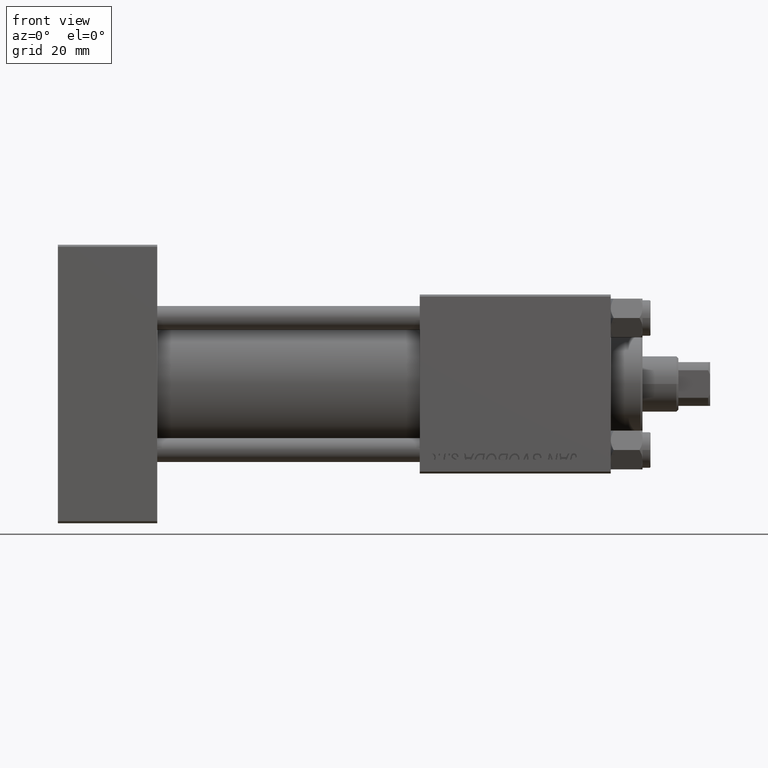
[diagram: clean part render]
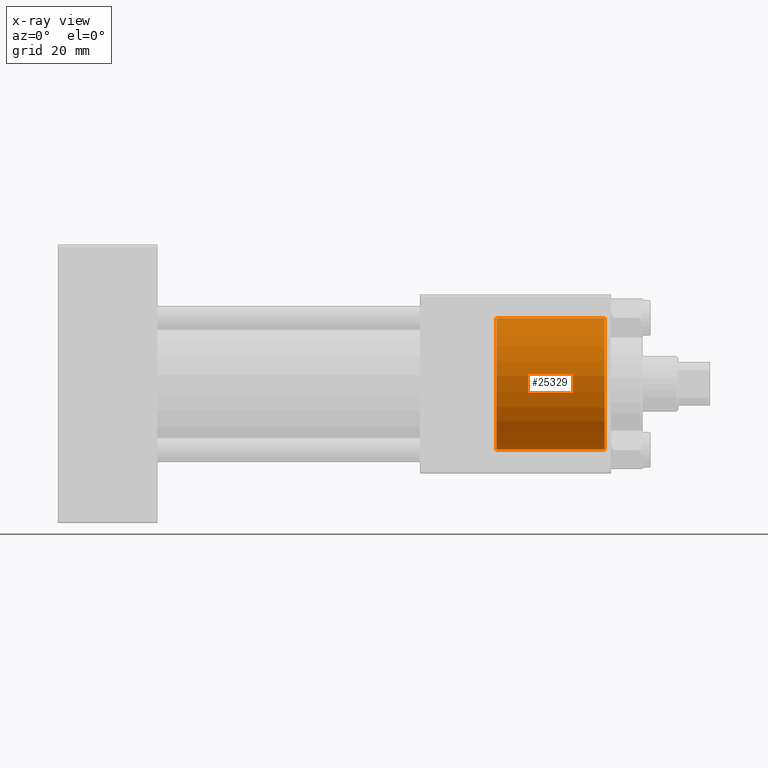
[diagram: x-ray — body ghosted, one internal face saturated and labeled with its STEP entity id]
A machine part, front view, then the same camera in x-ray: the body is ghosted and one INTERNAL B-rep face — a face not visible from any outside direction — is saturated and labeled: STEP entity #25329.
In plain terms, the highlighted cylindrical surface (partial cylindrical patch) has radius 16.5 mm, axis along (1, 0, 0).
Its self-contained STEP definition (entity closure, byte-faithful):
#900 = DIRECTION ( 'NONE',  ( 1.000000000000000000, -0.000000000000000000, -0.000000000000000000 ) ) ;
#4784 = VERTEX_POINT ( 'NONE', #44351 ) ;
#5581 = DIRECTION ( 'NONE',  ( 0.000000000000000000, 0.000000000000000000, -1.000000000000000000 ) ) ;
#8536 = CARTESIAN_POINT ( 'NONE',  ( 137.5000000000000568, 0.000000000000000000, 0.000000000000000000 ) ) ;
#8782 = DIRECTION ( 'NONE',  ( 0.000000000000000000, 0.000000000000000000, 1.000000000000000000 ) ) ;
#10267 = LINE ( 'NONE', #14063, #36479 ) ;
#10389 = CARTESIAN_POINT ( 'NONE',  ( 110.3000000000000114, 2.020667218593133100E-15, 16.50000000000000000 ) ) ;
#11557 = EDGE_CURVE ( 'NONE', #46761, #4784, #47384, .T. ) ;
#14063 = CARTESIAN_POINT ( 'NONE',  ( 110.3000000000000114, 2.020667218593133100E-15, 16.50000000000000000 ) ) ;
#14889 = VECTOR ( 'NONE', #900, 1000.000000000000000 ) ;
#16944 = DIRECTION ( 'NONE',  ( 1.000000000000000000, -0.000000000000000000, -0.000000000000000000 ) ) ;
#17928 = CYLINDRICAL_SURFACE ( 'NONE', #30369, 16.50000000000000000 ) ;
#17953 = DIRECTION ( 'NONE',  ( 1.000000000000000000, 0.000000000000000000, 0.000000000000000000 ) ) ;
#18075 = ORIENTED_EDGE ( 'NONE', *, *, #33794, .F. ) ;
#19581 = CARTESIAN_POINT ( 'NONE',  ( 137.5000000000000568, 2.020667218593133100E-15, 16.50000000000000000 ) ) ;
#23923 = VERTEX_POINT ( 'NONE', #10389 ) ;
#25329 = ADVANCED_FACE ( 'NONE', ( #28801 ), #17928, .F. ) ;
#26416 = DIRECTION ( 'NONE',  ( 1.000000000000000000, -0.000000000000000000, -0.000000000000000000 ) ) ;
#27429 = AXIS2_PLACEMENT_3D ( 'NONE', #8536, #47191, #8782 ) ;
#28801 = FACE_OUTER_BOUND ( 'NONE', #31250, .T. ) ;
#30369 = AXIS2_PLACEMENT_3D ( 'NONE', #36147, #16944, #5581 ) ;
#31250 = EDGE_LOOP ( 'NONE', ( #18075, #36284, #45985, #31604 ) ) ;
#31604 = ORIENTED_EDGE ( 'NONE', *, *, #11557, .F. ) ;
#32143 = CIRCLE ( 'NONE', #38591, 16.50000000000000000 ) ;
#33370 = DIRECTION ( 'NONE',  ( 0.000000000000000000, 0.000000000000000000, -1.000000000000000000 ) ) ;
#33794 = EDGE_CURVE ( 'NONE', #23923, #46761, #32143, .T. ) ;
#35205 = CARTESIAN_POINT ( 'NONE',  ( 110.3000000000000114, 0.000000000000000000, -16.50000000000000000 ) ) ;
#35849 = VERTEX_POINT ( 'NONE', #19581 ) ;
#36147 = CARTESIAN_POINT ( 'NONE',  ( 110.3000000000000114, 0.000000000000000000, 0.000000000000000000 ) ) ;
#36284 = ORIENTED_EDGE ( 'NONE', *, *, #42134, .T. ) ;
#36479 = VECTOR ( 'NONE', #26416, 1000.000000000000000 ) ;
#37145 = CARTESIAN_POINT ( 'NONE',  ( 110.3000000000000114, 0.000000000000000000, 0.000000000000000000 ) ) ;
#37887 = CIRCLE ( 'NONE', #27429, 16.50000000000000000 ) ;
#38591 = AXIS2_PLACEMENT_3D ( 'NONE', #37145, #17953, #33370 ) ;
#39040 = CARTESIAN_POINT ( 'NONE',  ( 110.3000000000000114, 0.000000000000000000, -16.50000000000000000 ) ) ;
#42134 = EDGE_CURVE ( 'NONE', #23923, #35849, #10267, .T. ) ;
#44351 = CARTESIAN_POINT ( 'NONE',  ( 137.5000000000000568, 0.000000000000000000, -16.50000000000000000 ) ) ;
#45985 = ORIENTED_EDGE ( 'NONE', *, *, #47395, .T. ) ;
#46761 = VERTEX_POINT ( 'NONE', #35205 ) ;
#47191 = DIRECTION ( 'NONE',  ( 1.000000000000000000, 0.000000000000000000, 0.000000000000000000 ) ) ;
#47384 = LINE ( 'NONE', #39040, #14889 ) ;
#47395 = EDGE_CURVE ( 'NONE', #35849, #4784, #37887, .T. ) ;